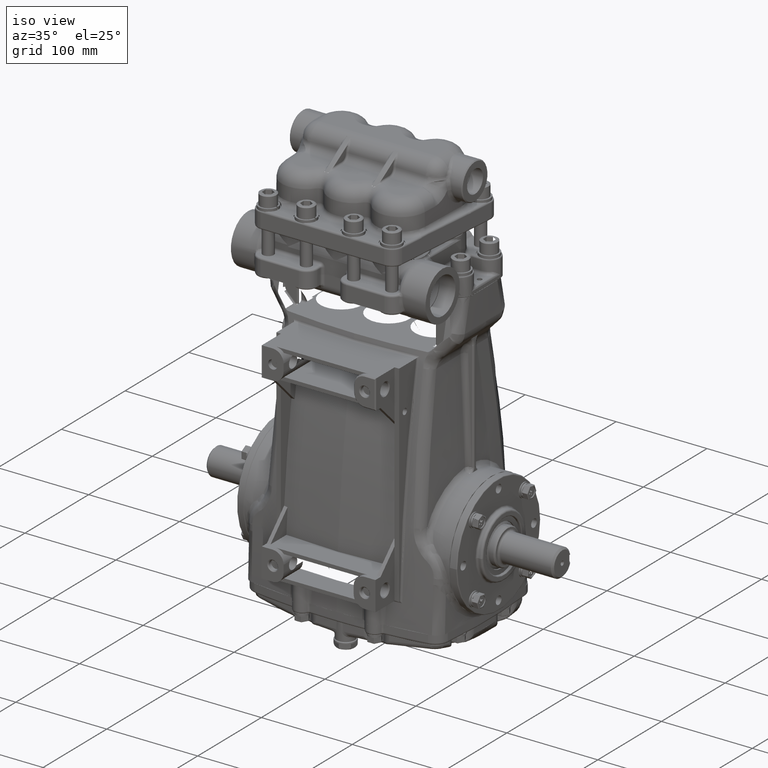
[diagram: clean part render]
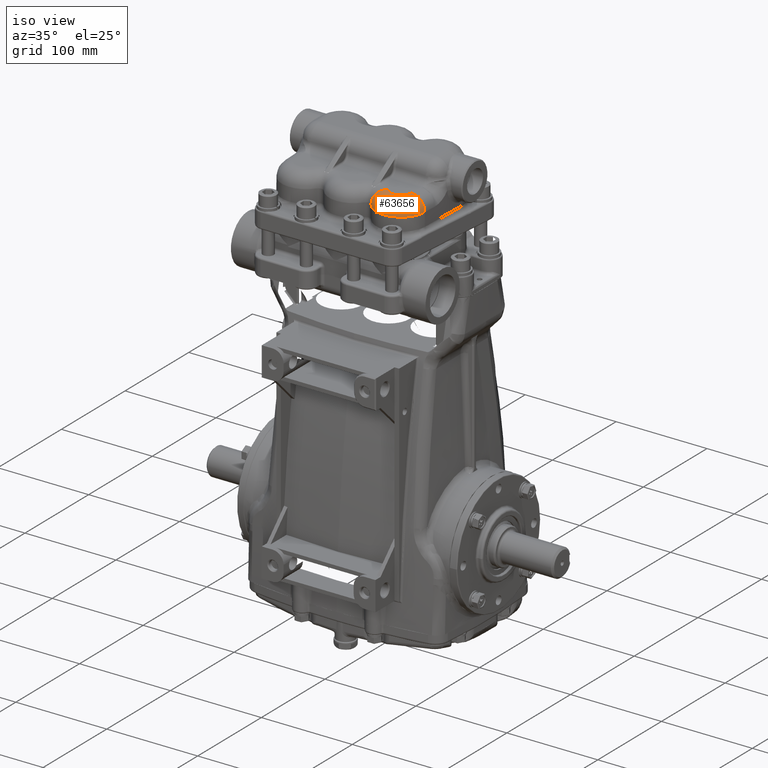
[diagram: same view with one face highlighted and labeled with its STEP entity id]
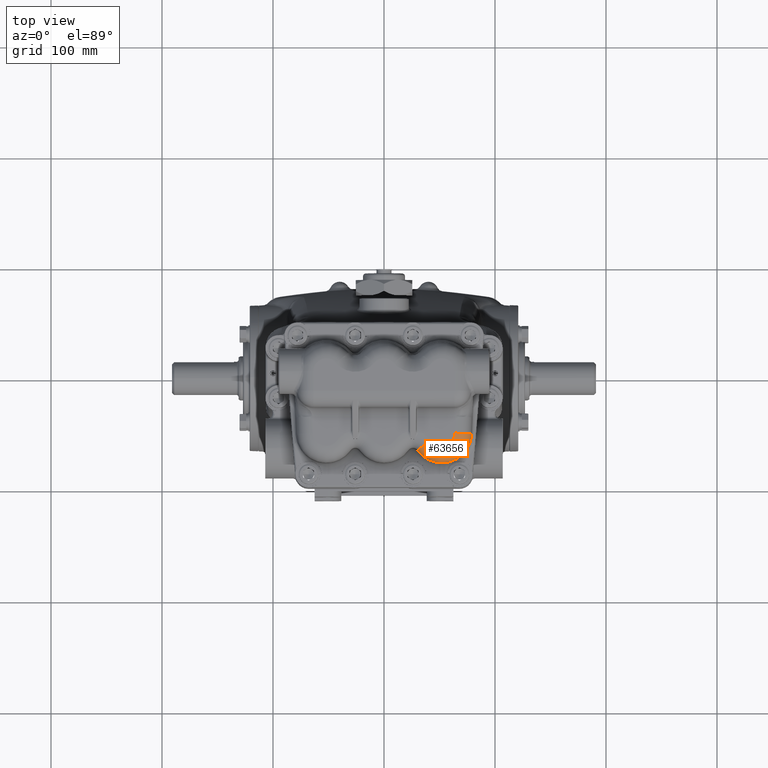
[diagram: same view with one face highlighted and labeled with its STEP entity id]
A machine part, iso view. The second image highlights one B-rep face of the part: STEP entity #63656.
A second angle (top view) of the same face is appended — the face is thin or edge-on in the first view.
In plain terms, the highlighted toroidal blend (fillet) surface has major radius 12 mm and minor (blend) radius 15 mm.
Its self-contained STEP definition (entity closure, byte-faithful):
#2707 = DIRECTION ( 'NONE',  ( -1.000000000000000000, 0.000000000000000000, 0.000000000000000000 ) ) ;
#2903 = DIRECTION ( 'NONE',  ( -0.03636363636363576513, -0.9993386242662761765, 4.622869791906867077E-16 ) ) ;
#3930 = EDGE_CURVE ( 'NONE', #71235, #90957, #106802, .T. ) ;
#4020 = CARTESIAN_POINT ( 'NONE',  ( 2.519372578393516804, -2.182534001431638782, 13.99606299212598692 ) ) ;
#4883 = EDGE_CURVE ( 'NONE', #58687, #59568, #31541, .T. ) ;
#5258 = ORIENTED_EDGE ( 'NONE', *, *, #3930, .T. ) ;
#7670 = AXIS2_PLACEMENT_3D ( 'NONE', #106965, #2903, #21472 ) ;
#8542 = DIRECTION ( 'NONE',  ( -0.000000000000000000, -0.000000000000000000, -1.000000000000000000 ) ) ;
#11598 = AXIS2_PLACEMENT_3D ( 'NONE', #13948, #48267, #2707 ) ;
#13948 = CARTESIAN_POINT ( 'NONE',  ( 2.047244094488188448, -2.165354330708661568, 13.40551181102362399 ) ) ;
#21472 = DIRECTION ( 'NONE',  ( 0.9993386242662759544, -0.03636363636363575819, 0.000000000000000000 ) ) ;
#21485 = CIRCLE ( 'NONE', #60966, 0.5905511811023620439 ) ;
#24880 = DIRECTION ( 'NONE',  ( -1.000000000000000000, 0.000000000000000000, 0.000000000000000000 ) ) ;
#31541 = CIRCLE ( 'NONE', #94385, 0.4724409448818904789 ) ;
#41786 = CIRCLE ( 'NONE', #7670, 0.5905511811023623769 ) ;
#42282 = CARTESIAN_POINT ( 'NONE',  ( 2.047244094488188448, -2.165354330708661568, 13.99606299212598692 ) ) ;
#48267 = DIRECTION ( 'NONE',  ( 0.000000000000000000, 0.000000000000000000, 1.000000000000000000 ) ) ;
#49793 = EDGE_LOOP ( 'NONE', ( #111016, #5258, #96479, #110907 ) ) ;
#56514 = TOROIDAL_SURFACE ( 'NONE', #96063, 0.4724409448818904789, 0.5905511811023621549 ) ;
#58687 = VERTEX_POINT ( 'NONE', #4020 ) ;
#59261 = DIRECTION ( 'NONE',  ( -0.5829611908180497570, 0.8125000000000008882, -0.000000000000000000 ) ) ;
#59568 = VERTEX_POINT ( 'NONE', #102647 ) ;
#60966 = AXIS2_PLACEMENT_3D ( 'NONE', #102549, #59261, #100882 ) ;
#63656 = ADVANCED_FACE ( 'NONE', ( #100746 ), #56514, .T. ) ;
#69728 = CARTESIAN_POINT ( 'NONE',  ( 3.109533183275175805, -2.204008589835360965, 13.40551181102362399 ) ) ;
#71235 = VERTEX_POINT ( 'NONE', #96370 ) ;
#83838 = CARTESIAN_POINT ( 'NONE',  ( 2.047244094488188448, -2.165354330708661568, 13.40551181102362399 ) ) ;
#90957 = VERTEX_POINT ( 'NONE', #69728 ) ;
#93951 = DIRECTION ( 'NONE',  ( 0.000000000000000000, 0.000000000000000000, 1.000000000000000000 ) ) ;
#94385 = AXIS2_PLACEMENT_3D ( 'NONE', #42282, #8542, #24880 ) ;
#95048 = EDGE_CURVE ( 'NONE', #90957, #58687, #41786, .T. ) ;
#96063 = AXIS2_PLACEMENT_3D ( 'NONE', #83838, #93951, #101863 ) ;
#96370 = CARTESIAN_POINT ( 'NONE',  ( 1.183562992125983593, -2.785037486302652798, 13.40551181102362399 ) ) ;
#96479 = ORIENTED_EDGE ( 'NONE', *, *, #95048, .T. ) ;
#100746 = FACE_OUTER_BOUND ( 'NONE', #49793, .T. ) ;
#100882 = DIRECTION ( 'NONE',  ( -0.8125000000000008882, -0.5829611908180498681, 0.000000000000000000 ) ) ;
#101863 = DIRECTION ( 'NONE',  ( -1.000000000000000000, 0.000000000000000000, 0.000000000000000000 ) ) ;
#102549 = CARTESIAN_POINT ( 'NONE',  ( 1.663385826771653475, -2.440769066528214015, 13.40551181102362399 ) ) ;
#102647 = CARTESIAN_POINT ( 'NONE',  ( 1.663385826771653253, -2.440769066528214459, 13.99606299212598692 ) ) ;
#105707 = EDGE_CURVE ( 'NONE', #71235, #59568, #21485, .T. ) ;
#106802 = CIRCLE ( 'NONE', #11598, 1.062992125984252745 ) ;
#106965 = CARTESIAN_POINT ( 'NONE',  ( 2.519372578393516804, -2.182534001431639226, 13.40551181102362399 ) ) ;
#110907 = ORIENTED_EDGE ( 'NONE', *, *, #4883, .T. ) ;
#111016 = ORIENTED_EDGE ( 'NONE', *, *, #105707, .F. ) ;